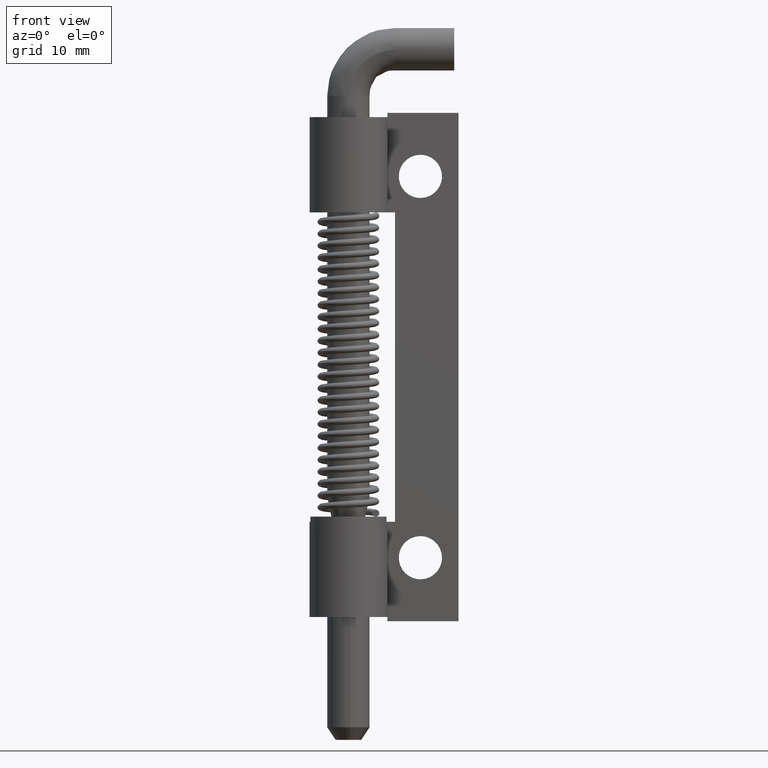
[diagram: clean part render]
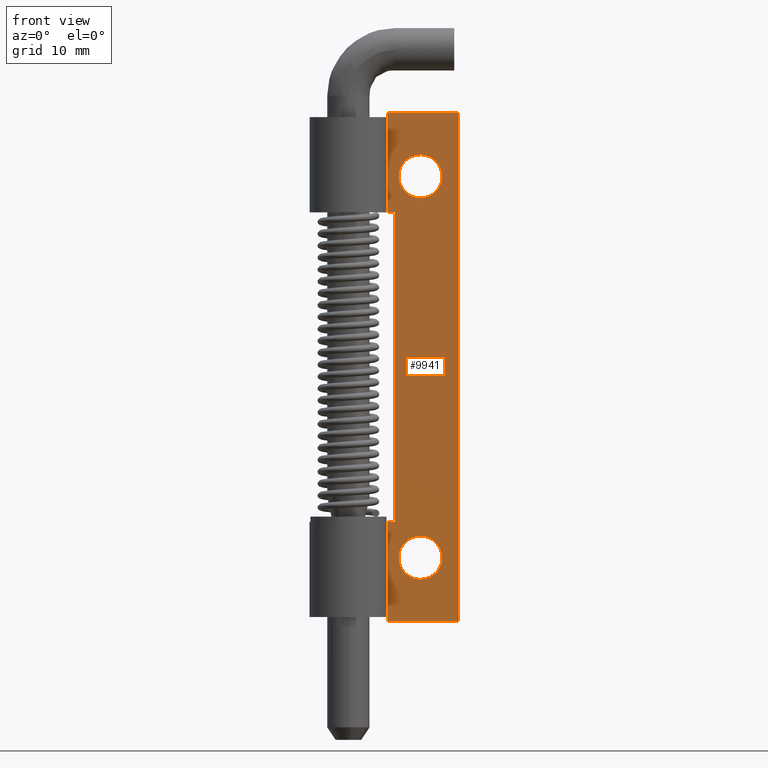
[diagram: same view with one face highlighted and labeled with its STEP entity id]
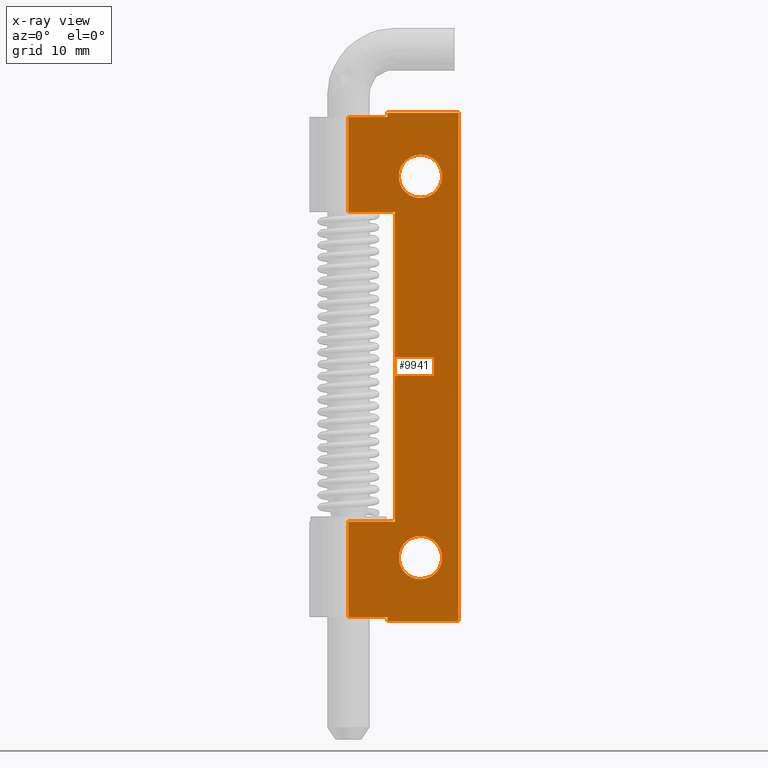
[diagram: x-ray of the same camera — body ghosted, the highlighted face saturated]
A machine part, front view. The second image highlights one B-rep face of the part: STEP entity #9941.
The next image is the same camera in x-ray: the body ghosted, the highlighted face saturated — about 0% of this face is hidden behind the body in this view.
In plain terms, the highlighted face is a freeform B-spline surface patch.
Its self-contained STEP definition (entity closure, byte-faithful):
#9027=CARTESIAN_POINT('',(5.967825707789779,2.600000000000045,66.800987298552883));
#9028=VERTEX_POINT('',#9027);
#9034=CARTESIAN_POINT('',(8.500000000000101,2.600000000000045,63.950000000034912));
#9035=VERTEX_POINT('',#9034);
#9036=CARTESIAN_POINT('',(5.967825707789779,2.600000000000045,66.800987298552883));
#9037=CARTESIAN_POINT('',(5.950000000000101,2.600000000000045,66.651021505292036));
#9038=CARTESIAN_POINT('',(5.950000000000101,2.600000000000045,66.500000000034902));
#9039=CARTESIAN_POINT('',(5.950000000000101,2.600000000000045,63.950000000034919));
#9040=CARTESIAN_POINT('',(8.500000000000101,2.600000000000045,63.950000000034912));
#9048=(BOUNDED_CURVE()B_SPLINE_CURVE(2,(#9036,#9037,#9038,#9039,#9040),.UNSPECIFIED.,.F.,.U.)B_SPLINE_CURVE_WITH_KNOTS((3,2,3),(0.229562473496523,0.250000000000000,0.500000000000000),.UNSPECIFIED.)CURVE()GEOMETRIC_REPRESENTATION_ITEM()RATIONAL_B_SPLINE_CURVE((0.956026754150407,0.976055948311245,1.0,0.707106781186548,1.0))REPRESENTATION_ITEM(''));
#9049=EDGE_CURVE('',#9028,#9035,#9048,.T.);
#9051=CARTESIAN_POINT('',(11.045243735731930,2.600000000000045,66.344326220232702));
#9052=VERTEX_POINT('',#9051);
#9053=CARTESIAN_POINT('',(8.500000000000101,2.600000000000045,63.950000000034912));
#9054=CARTESIAN_POINT('',(10.898800463077887,2.600000000000045,63.950000000034912));
#9055=CARTESIAN_POINT('',(11.045243735731932,2.600000000000045,66.344326220232702));
#9063=(BOUNDED_CURVE()B_SPLINE_CURVE(2,(#9053,#9054,#9055),.UNSPECIFIED.,.F.,.U.)B_SPLINE_CURVE_WITH_KNOTS((3,3),(0.500000000000000,0.739332961701217),.UNSPECIFIED.)CURVE()GEOMETRIC_REPRESENTATION_ITEM()RATIONAL_B_SPLINE_CURVE((1.0,0.719603993916695,0.976072040514270))REPRESENTATION_ITEM(''));
#9064=EDGE_CURVE('',#9035,#9052,#9063,.T.);
#9138=CARTESIAN_POINT('',(8.500000000000101,2.600000000000045,69.050000000034899));
#9139=VERTEX_POINT('',#9138);
#9140=CARTESIAN_POINT('',(11.045243735731930,2.600000000000045,66.344326220232702));
#9141=CARTESIAN_POINT('',(11.050000000000106,2.600000000000045,66.422090449624008));
#9142=CARTESIAN_POINT('',(11.050000000000100,2.600000000000045,66.500000000034902));
#9143=CARTESIAN_POINT('',(11.050000000000102,2.600000000000045,69.050000000034899));
#9144=CARTESIAN_POINT('',(8.500000000000101,2.600000000000045,69.050000000034899));
#9152=(BOUNDED_CURVE()B_SPLINE_CURVE(2,(#9140,#9141,#9142,#9143,#9144),.UNSPECIFIED.,.F.,.U.)B_SPLINE_CURVE_WITH_KNOTS((3,2,3),(0.739332961701218,0.750000000000000,1.0),.UNSPECIFIED.)CURVE()GEOMETRIC_REPRESENTATION_ITEM()RATIONAL_B_SPLINE_CURVE((0.976072040514272,0.987502787269854,1.0,0.707106781186548,1.0))REPRESENTATION_ITEM(''));
#9153=EDGE_CURVE('',#9052,#9139,#9152,.T.);
#9155=CARTESIAN_POINT('',(8.500000000000101,2.600000000000045,69.050000000034899));
#9156=CARTESIAN_POINT('',(6.235154959082166,2.600000000000045,69.050000000034913));
#9157=CARTESIAN_POINT('',(5.967825707789779,2.600000000000045,66.800987298552883));
#9165=(BOUNDED_CURVE()B_SPLINE_CURVE(2,(#9155,#9156,#9157),.UNSPECIFIED.,.F.,.U.)B_SPLINE_CURVE_WITH_KNOTS((3,3),(0.0,0.229562473496523),.UNSPECIFIED.)CURVE()GEOMETRIC_REPRESENTATION_ITEM()RATIONAL_B_SPLINE_CURVE((1.0,0.731050832875302,0.956026754150407))REPRESENTATION_ITEM(''));
#9166=EDGE_CURVE('',#9139,#9028,#9165,.T.);
#9213=CARTESIAN_POINT('',(5.967825707789780,2.600000000000045,21.800987298552879));
#9214=VERTEX_POINT('',#9213);
#9220=CARTESIAN_POINT('',(8.500000000000101,2.600000000000045,18.950000000034901));
#9221=VERTEX_POINT('',#9220);
#9222=CARTESIAN_POINT('',(5.967825707789780,2.600000000000045,21.800987298552883));
#9223=CARTESIAN_POINT('',(5.950000000000101,2.600000000000045,21.651021505292036));
#9224=CARTESIAN_POINT('',(5.950000000000101,2.600000000000045,21.500000000034898));
#9225=CARTESIAN_POINT('',(5.950000000000101,2.600000000000045,18.950000000034894));
#9226=CARTESIAN_POINT('',(8.500000000000101,2.600000000000045,18.950000000034901));
#9234=(BOUNDED_CURVE()B_SPLINE_CURVE(2,(#9222,#9223,#9224,#9225,#9226),.UNSPECIFIED.,.F.,.U.)B_SPLINE_CURVE_WITH_KNOTS((3,2,3),(0.229562473496522,0.250000000000000,0.500000000000000),.UNSPECIFIED.)CURVE()GEOMETRIC_REPRESENTATION_ITEM()RATIONAL_B_SPLINE_CURVE((0.956026754150406,0.976055948311245,1.0,0.707106781186548,1.0))REPRESENTATION_ITEM(''));
#9235=EDGE_CURVE('',#9214,#9221,#9234,.T.);
#9237=CARTESIAN_POINT('',(11.045243735731930,2.600000000000045,21.344326220232709));
#9238=VERTEX_POINT('',#9237);
#9239=CARTESIAN_POINT('',(8.500000000000101,2.600000000000045,18.950000000034901));
#9240=CARTESIAN_POINT('',(10.898800463077887,2.600000000000045,18.950000000034898));
#9241=CARTESIAN_POINT('',(11.045243735731932,2.600000000000045,21.344326220232709));
#9249=(BOUNDED_CURVE()B_SPLINE_CURVE(2,(#9239,#9240,#9241),.UNSPECIFIED.,.F.,.U.)B_SPLINE_CURVE_WITH_KNOTS((3,3),(0.500000000000000,0.739332961701217),.UNSPECIFIED.)CURVE()GEOMETRIC_REPRESENTATION_ITEM()RATIONAL_B_SPLINE_CURVE((1.0,0.719603993916695,0.976072040514270))REPRESENTATION_ITEM(''));
#9250=EDGE_CURVE('',#9221,#9238,#9249,.T.);
#9324=CARTESIAN_POINT('',(8.500000000000101,2.600000000000045,24.050000000034899));
#9325=VERTEX_POINT('',#9324);
#9326=CARTESIAN_POINT('',(11.045243735731924,2.600000000000045,21.344326220232709));
#9327=CARTESIAN_POINT('',(11.050000000000104,2.600000000000045,21.422090449624008));
#9328=CARTESIAN_POINT('',(11.050000000000100,2.600000000000045,21.500000000034898));
#9329=CARTESIAN_POINT('',(11.050000000000102,2.600000000000045,24.050000000034903));
#9330=CARTESIAN_POINT('',(8.500000000000101,2.600000000000045,24.050000000034899));
#9338=(BOUNDED_CURVE()B_SPLINE_CURVE(2,(#9326,#9327,#9328,#9329,#9330),.UNSPECIFIED.,.F.,.U.)B_SPLINE_CURVE_WITH_KNOTS((3,2,3),(0.739332961701219,0.750000000000000,1.0),.UNSPECIFIED.)CURVE()GEOMETRIC_REPRESENTATION_ITEM()RATIONAL_B_SPLINE_CURVE((0.976072040514272,0.987502787269854,1.0,0.707106781186548,1.0))REPRESENTATION_ITEM(''));
#9339=EDGE_CURVE('',#9238,#9325,#9338,.T.);
#9341=CARTESIAN_POINT('',(8.500000000000101,2.600000000000045,24.050000000034899));
#9342=CARTESIAN_POINT('',(6.235154959082173,2.600000000000045,24.050000000034903));
#9343=CARTESIAN_POINT('',(5.967825707789780,2.600000000000045,21.800987298552879));
#9351=(BOUNDED_CURVE()B_SPLINE_CURVE(2,(#9341,#9342,#9343),.UNSPECIFIED.,.F.,.U.)B_SPLINE_CURVE_WITH_KNOTS((3,3),(0.0,0.229562473496522),.UNSPECIFIED.)CURVE()GEOMETRIC_REPRESENTATION_ITEM()RATIONAL_B_SPLINE_CURVE((1.0,0.731050832875303,0.956026754150406))REPRESENTATION_ITEM(''));
#9352=EDGE_CURVE('',#9325,#9214,#9351,.T.);
#9365=CARTESIAN_POINT('',(4.600000000000110,2.600000000002855,74.000000000034902));
#9366=VERTEX_POINT('',#9365);
#9379=CARTESIAN_POINT('',(4.600000000000110,2.600000000002825,73.500000000000000));
#9380=VERTEX_POINT('',#9379);
#9386=CARTESIAN_POINT('',(4.600000000000110,2.600000000002855,74.000000000034902));
#9387=CARTESIAN_POINT('',(4.600000000000110,2.600000000002825,73.500000000000000));
#9388=QUASI_UNIFORM_CURVE('',1,(#9386,#9387),.UNSPECIFIED.,.F.,.U.);
#9389=EDGE_CURVE('',#9366,#9380,#9388,.T.);
#9429=CARTESIAN_POINT('',(0.0,2.600000000000000,73.500000000000000));
#9430=VERTEX_POINT('',#9429);
#9450=CARTESIAN_POINT('',(4.600000000000110,2.600000000002825,73.500000000000000));
#9451=CARTESIAN_POINT('',(0.0,2.600000000000000,73.500000000000000));
#9452=QUASI_UNIFORM_CURVE('',1,(#9450,#9451),.UNSPECIFIED.,.F.,.U.);
#9453=EDGE_CURVE('',#9380,#9430,#9452,.T.);
#9499=CARTESIAN_POINT('',(0.0,2.600000000000000,25.750000000034898));
#9500=VERTEX_POINT('',#9499);
#9520=CARTESIAN_POINT('',(5.500000000000100,2.600000000001710,25.750000000034849));
#9521=VERTEX_POINT('',#9520);
#9522=CARTESIAN_POINT('',(0.0,2.600000000000000,25.750000000034898));
#9523=CARTESIAN_POINT('',(5.500000000000100,2.600000000001710,25.750000000034849));
#9524=QUASI_UNIFORM_CURVE('',1,(#9522,#9523),.UNSPECIFIED.,.F.,.U.);
#9525=EDGE_CURVE('',#9500,#9521,#9524,.T.);
#9556=CARTESIAN_POINT('',(5.500000000000100,2.600000000003380,62.250000000034902));
#9557=VERTEX_POINT('',#9556);
#9563=CARTESIAN_POINT('',(0.0,2.600000000000000,62.250000000034902));
#9564=VERTEX_POINT('',#9563);
#9565=CARTESIAN_POINT('',(5.500000000000100,2.600000000003380,62.250000000034902));
#9566=CARTESIAN_POINT('',(0.0,2.600000000000000,62.250000000034902));
#9567=QUASI_UNIFORM_CURVE('',1,(#9565,#9566),.UNSPECIFIED.,.F.,.U.);
#9568=EDGE_CURVE('',#9557,#9564,#9567,.T.);
#9625=CARTESIAN_POINT('',(5.500000000000100,2.600000000001710,25.750000000034849));
#9626=CARTESIAN_POINT('',(5.500000000000100,2.600000000003380,62.250000000034902));
#9627=QUASI_UNIFORM_CURVE('',1,(#9625,#9626),.UNSPECIFIED.,.F.,.U.);
#9628=EDGE_CURVE('',#9521,#9557,#9627,.T.);
#9647=CARTESIAN_POINT('',(4.600000000000110,2.600000000001380,14.500000000000000));
#9648=VERTEX_POINT('',#9647);
#9661=CARTESIAN_POINT('',(4.600000000000110,2.600000000004045,14.000000000034900));
#9662=VERTEX_POINT('',#9661);
#9668=CARTESIAN_POINT('',(4.600000000000110,2.600000000001380,14.500000000000000));
#9669=CARTESIAN_POINT('',(4.600000000000110,2.600000000004045,14.000000000034900));
#9670=QUASI_UNIFORM_CURVE('',1,(#9668,#9669),.UNSPECIFIED.,.F.,.U.);
#9671=EDGE_CURVE('',#9648,#9662,#9670,.T.);
#9710=CARTESIAN_POINT('',(0.0,2.600000000000000,14.500000000000000));
#9711=VERTEX_POINT('',#9710);
#9712=CARTESIAN_POINT('',(0.0,2.600000000000000,14.500000000000000));
#9713=CARTESIAN_POINT('',(4.600000000000110,2.600000000001380,14.500000000000000));
#9714=QUASI_UNIFORM_CURVE('',1,(#9712,#9713),.UNSPECIFIED.,.F.,.U.);
#9715=EDGE_CURVE('',#9711,#9648,#9714,.T.);
#9759=CARTESIAN_POINT('',(13.000000000009800,2.600000000008075,14.000000000034859));
#9760=VERTEX_POINT('',#9759);
#9766=CARTESIAN_POINT('',(4.600000000000110,2.600000000004045,14.000000000034900));
#9767=CARTESIAN_POINT('',(13.000000000009800,2.600000000008075,14.000000000034859));
#9768=QUASI_UNIFORM_CURVE('',1,(#9766,#9767),.UNSPECIFIED.,.F.,.U.);
#9769=EDGE_CURVE('',#9662,#9760,#9768,.T.);
#9787=CARTESIAN_POINT('',(13.000000000009800,2.600000000008075,74.000000000034902));
#9788=VERTEX_POINT('',#9787);
#9789=CARTESIAN_POINT('',(4.600000000000110,2.600000000002855,74.000000000034902));
#9790=CARTESIAN_POINT('',(13.000000000009800,2.600000000008075,74.000000000034902));
#9791=QUASI_UNIFORM_CURVE('',1,(#9789,#9790),.UNSPECIFIED.,.F.,.U.);
#9792=EDGE_CURVE('',#9366,#9788,#9791,.T.);
#9814=CARTESIAN_POINT('',(13.000000000009800,2.600000000008075,74.000000000034902));
#9815=CARTESIAN_POINT('',(13.000000000009800,2.600000000008075,14.000000000034859));
#9816=QUASI_UNIFORM_CURVE('',1,(#9814,#9815),.UNSPECIFIED.,.F.,.U.);
#9817=EDGE_CURVE('',#9788,#9760,#9816,.T.);
#9902=CARTESIAN_POINT('',(13.649349974813770,2.600000000008482,11.003000116326501));
#9903=CARTESIAN_POINT('',(-0.649350323491139,2.599999999999596,11.003000116326501));
#9904=CARTESIAN_POINT('',(13.649349974813770,2.600000000008482,76.997001493068666));
#9905=CARTESIAN_POINT('',(-0.649350323491139,2.599999999999596,76.997001493068666));
#9906=B_SPLINE_SURFACE_WITH_KNOTS('',1,1,((#9902,#9904),(#9903,#9905)),.UNSPECIFIED.,.F.,.F.,.U.,(2,2),(2,2),(0.0,14.298700298304910),(0.0,65.994001376742176),.UNSPECIFIED.);
#9907=ORIENTED_EDGE('',*,*,#9389,.T.);
#9908=ORIENTED_EDGE('',*,*,#9453,.T.);
#9909=CARTESIAN_POINT('',(0.0,2.600000000000000,73.500000000000000));
#9910=CARTESIAN_POINT('',(0.0,2.600000000000000,62.250000000034902));
#9911=QUASI_UNIFORM_CURVE('',1,(#9909,#9910),.UNSPECIFIED.,.F.,.U.);
#9912=EDGE_CURVE('',#9430,#9564,#9911,.T.);
#9913=ORIENTED_EDGE('',*,*,#9912,.T.);
#9914=ORIENTED_EDGE('',*,*,#9568,.F.);
#9915=ORIENTED_EDGE('',*,*,#9628,.F.);
#9916=ORIENTED_EDGE('',*,*,#9525,.F.);
#9917=CARTESIAN_POINT('',(0.0,2.600000000000000,25.750000000034898));
#9918=CARTESIAN_POINT('',(0.0,2.600000000000000,14.500000000000000));
#9919=QUASI_UNIFORM_CURVE('',1,(#9917,#9918),.UNSPECIFIED.,.F.,.U.);
#9920=EDGE_CURVE('',#9500,#9711,#9919,.T.);
#9921=ORIENTED_EDGE('',*,*,#9920,.T.);
#9922=ORIENTED_EDGE('',*,*,#9715,.T.);
#9923=ORIENTED_EDGE('',*,*,#9671,.T.);
#9924=ORIENTED_EDGE('',*,*,#9769,.T.);
#9925=ORIENTED_EDGE('',*,*,#9817,.F.);
#9926=ORIENTED_EDGE('',*,*,#9792,.F.);
#9927=EDGE_LOOP('',(#9907,#9908,#9913,#9914,#9915,#9916,#9921,#9922,#9923,#9924,#9925,#9926));
#9928=FACE_OUTER_BOUND('',#9927,.T.);
#9929=ORIENTED_EDGE('',*,*,#9250,.F.);
#9930=ORIENTED_EDGE('',*,*,#9235,.F.);
#9931=ORIENTED_EDGE('',*,*,#9352,.F.);
#9932=ORIENTED_EDGE('',*,*,#9339,.F.);
#9933=EDGE_LOOP('',(#9929,#9930,#9931,#9932));
#9934=FACE_BOUND('',#9933,.T.);
#9935=ORIENTED_EDGE('',*,*,#9064,.F.);
#9936=ORIENTED_EDGE('',*,*,#9049,.F.);
#9937=ORIENTED_EDGE('',*,*,#9166,.F.);
#9938=ORIENTED_EDGE('',*,*,#9153,.F.);
#9939=EDGE_LOOP('',(#9935,#9936,#9937,#9938));
#9940=FACE_BOUND('',#9939,.T.);
#9941=ADVANCED_FACE('',(#9928,#9934,#9940),#9906,.F.);